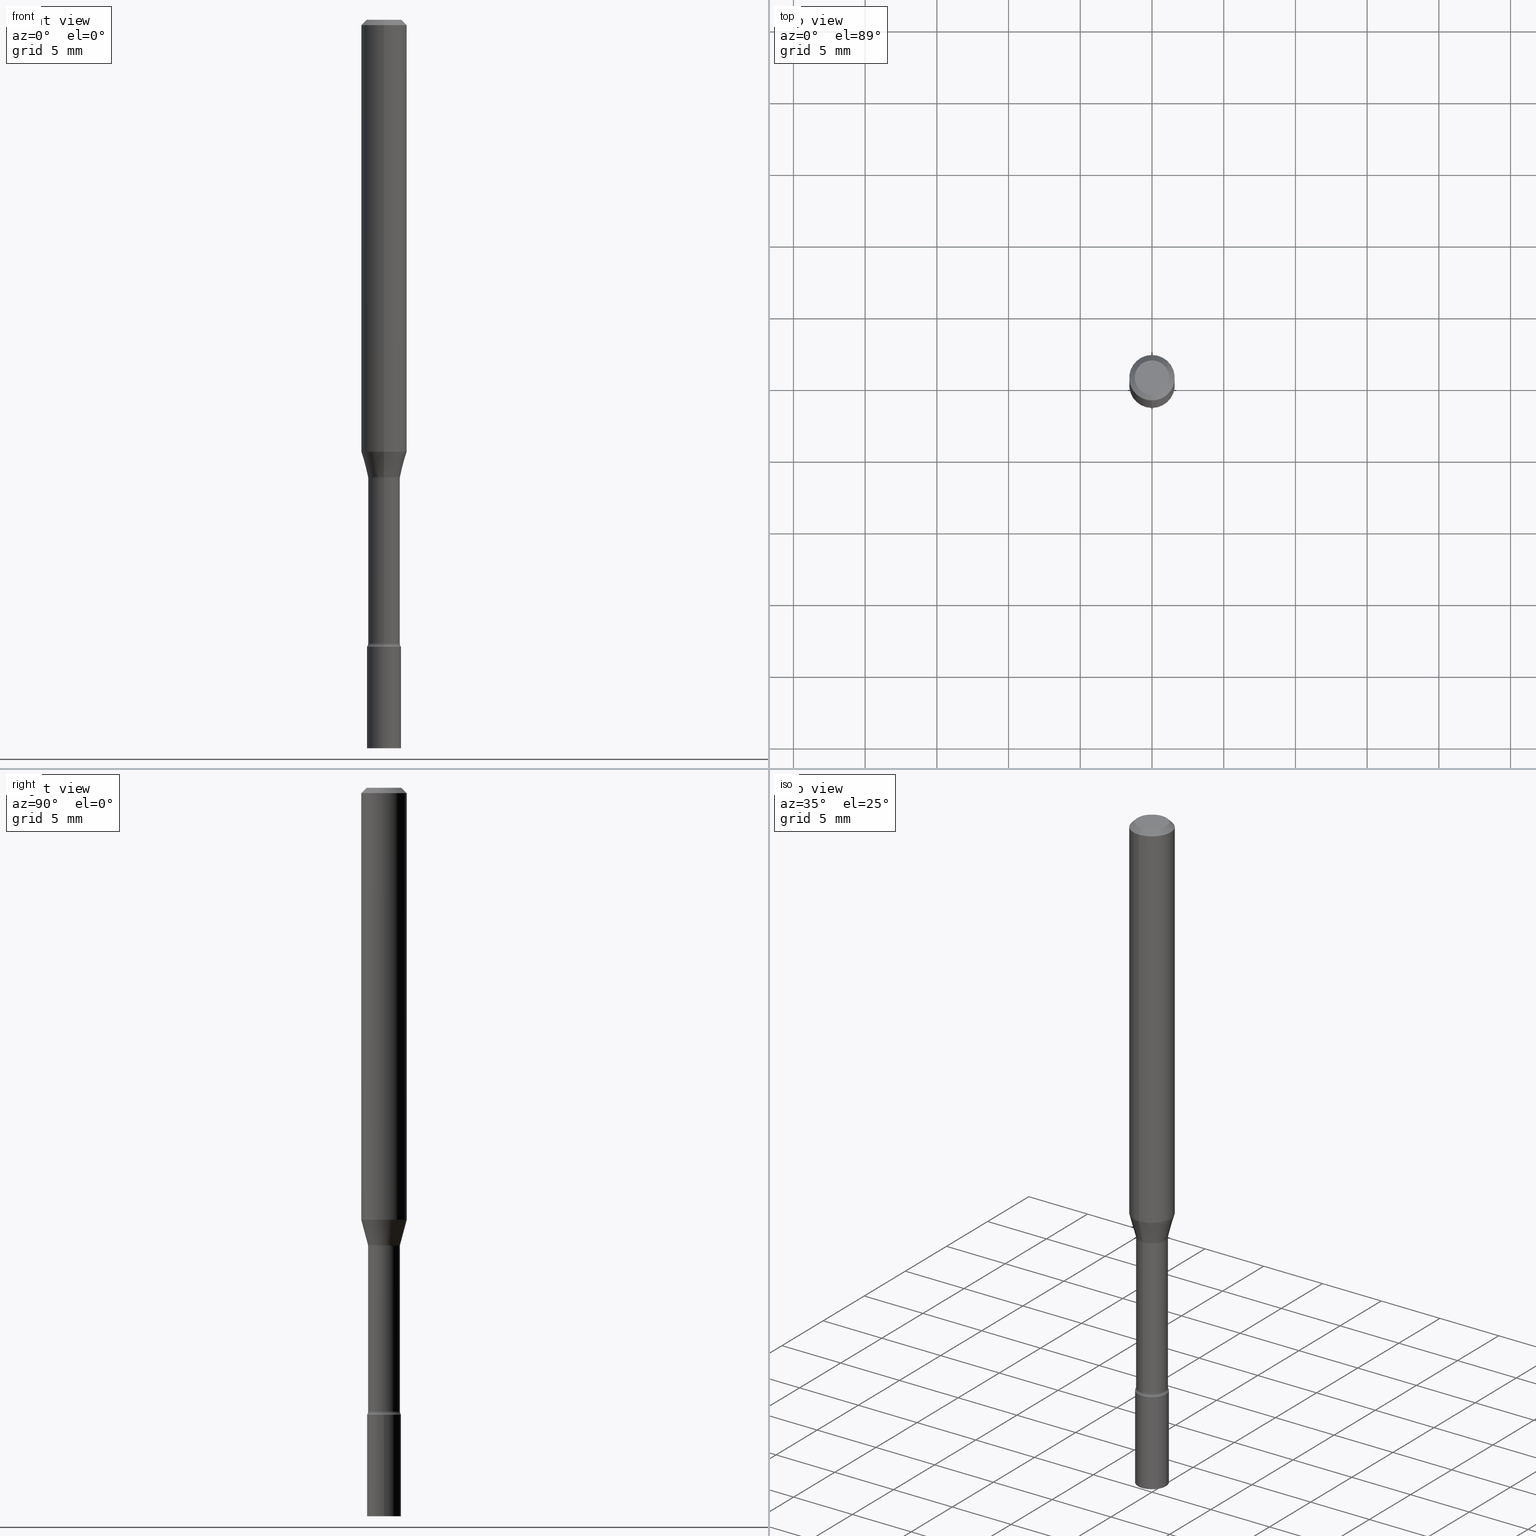
[diagram: canonical four-view strip — front | top / right | iso, engineering-drawing reading convention]
A machine part, canonical four-view strip (front | top / right | iso — engineering-drawing reading convention). The complete STEP part file that produces these views, byte-faithful:
ISO-10303-21;
HEADER;
FILE_DESCRIPTION (( 'STEP AP203' ),
    '1' );
FILE_NAME ('01332.STEP',
    '2024-03-08T21:14:33',
    ( '' ),
    ( '' ),
    'SwSTEP 2.0',
    'SolidWorks 2023',
    '' );
FILE_SCHEMA (( 'CONFIG_CONTROL_DESIGN' ));
ENDSEC;

DATA;
#1 = ORIENTED_EDGE ( 'NONE', *, *, #33, .F. ) ;
#2 = CARTESIAN_POINT ( 'NONE',  ( 4.364351673553919652E-16, 0.06249999999999995143, -0.01500000000000024751 ) ) ;
#3 = DIRECTION ( 'NONE',  ( -6.982962677686265133E-15, -1.000000000000000000, 6.251368406554375417E-15 ) ) ;
#4 = SECURITY_CLASSIFICATION ( '', '', #91 ) ;
#5 = DIRECTION ( 'NONE',  ( -2.445480588895451802E-29, 3.491464465331343396E-15, 1.000000000000000000 ) ) ;
#6 = EDGE_CURVE ( 'NONE', #343, #289, #273, .T. ) ;
#7 = AXIS2_PLACEMENT_3D ( 'NONE', #223, #299, #431 ) ;
#8 = SHAPE_DEFINITION_REPRESENTATION ( #291, #351 ) ;
#9 = DIRECTION ( 'NONE',  ( -2.445480588895451802E-29, 3.491464465331343790E-15, 1.000000000000000000 ) ) ;
#10 = AXIS2_PLACEMENT_3D ( 'NONE', #402, #484, #39 ) ;
#11 = PERSON_AND_ORGANIZATION_ROLE ( 'design_supplier' ) ;
#12 = DATE_AND_TIME ( #421, #488 ) ;
#13 = EDGE_LOOP ( 'NONE', ( #422, #156, #425, #83 ) ) ;
#14 = DIRECTION ( 'NONE',  ( -2.445480588895451802E-29, 3.491464465331343790E-15, 1.000000000000000000 ) ) ;
#15 = CALENDAR_DATE ( 2024, 8, 3 ) ;
#16 = EDGE_LOOP ( 'NONE', ( #148, #49, #211, #25 ) ) ;
#17 = EDGE_CURVE ( 'NONE', #213, #247, #86, .T. ) ;
#18 = AXIS2_PLACEMENT_3D ( 'NONE', #358, #303, #265 ) ;
#19 = ORIENTED_EDGE ( 'NONE', *, *, #163, .T. ) ;
#20 = CARTESIAN_POINT ( 'NONE',  ( 4.187330458508121019E-29, -5.978340440266618372E-15, -1.712273030308291366 ) ) ;
#21 = ORIENTED_EDGE ( 'NONE', *, *, #419, .F. ) ;
#22 = LINE ( 'NONE', #183, #116 ) ;
#23 = EDGE_CURVE ( 'NONE', #161, #67, #508, .T. ) ;
#24 = CYLINDRICAL_SURFACE ( 'NONE', #420, 0.04649999999999999967 ) ;
#25 = ORIENTED_EDGE ( 'NONE', *, *, #455, .F. ) ;
#26 = ORIENTED_EDGE ( 'NONE', *, *, #271, .F. ) ;
#27 = FACE_OUTER_BOUND ( 'NONE', #138, .T. ) ;
#28 = AXIS2_PLACEMENT_3D ( 'NONE', #297, #225, #160 ) ;
#29 = FACE_OUTER_BOUND ( 'NONE', #234, .T. ) ;
#30 = CONICAL_SURFACE ( 'NONE', #224, 0.06250000000000000000, 0.7853981633974483900 ) ;
#31 = CC_DESIGN_PERSON_AND_ORGANIZATION_ASSIGNMENT ( #519, #96, ( #457 ) ) ;
#32 = FACE_OUTER_BOUND ( 'NONE', #295, .T. ) ;
#33 = EDGE_CURVE ( 'NONE', #343, #396, #202, .T. ) ;
#34 = DIRECTION ( 'NONE',  ( -2.445480588895451802E-29, 3.491464465331343790E-15, 1.000000000000000000 ) ) ;
#35 = AXIS2_PLACEMENT_3D ( 'NONE', #178, #296, #465 ) ;
#36 = EDGE_CURVE ( 'NONE', #191, #417, #405, .T. ) ;
#37 = CIRCLE ( 'NONE', #328, 0.06250000000000000000 ) ;
#38 = FACE_OUTER_BOUND ( 'NONE', #390, .T. ) ;
#39 = DIRECTION ( 'NONE',  ( -1.000000000000000000, 6.982962677686265922E-15, -4.876176775795935793E-29 ) ) ;
#40 = DIRECTION ( 'NONE',  ( -6.982962677686264344E-15, -1.000000000000000000, 6.251368406554373050E-15 ) ) ;
#41 = ADVANCED_FACE ( 'NONE', ( #229 ), #312, .T. ) ;
#42 = APPLICATION_CONTEXT ( 'configuration controlled 3d designs of mechanical parts and assemblies' ) ;
#43 = CARTESIAN_POINT ( 'NONE',  ( 4.187330458508121019E-29, -5.978340440266618372E-15, -1.712273030308291366 ) ) ;
#44 = VECTOR ( 'NONE', #314, 39.37007874015748143 ) ;
#45 = CLOSED_SHELL ( 'NONE', ( #87, #294, #94, #518 ) ) ;
#46 = LENGTH_MEASURE_WITH_UNIT ( LENGTH_MEASURE( 0.02539999999999999897 ), #408 );
#47 = CIRCLE ( 'NONE', #458, 0.04370000000000001661 ) ;
#48 = PRODUCT_DEFINITION ( 'UNKNOWN', '', #515, #453 ) ;
#49 = ORIENTED_EDGE ( 'NONE', *, *, #154, .T. ) ;
#50 = DIRECTION ( 'NONE',  ( -6.982962677686266711E-15, -1.000000000000000000, 3.491464465331344185E-15 ) ) ;
#51 = LINE ( 'NONE', #334, #215 ) ;
#52 = DATE_AND_TIME ( #15, #309 ) ;
#53 = CIRCLE ( 'NONE', #107, 0.04649999999999999967 ) ;
#54 = COORDINATED_UNIVERSAL_TIME_OFFSET ( 5, 0, .BEHIND. ) ;
#55 = CARTESIAN_POINT ( 'NONE',  ( 4.440892098500625669E-16, 0.06250000000000000000, -2.182165290832089869E-16 ) ) ;
#56 = APPROVAL_ROLE ( '' ) ;
#57 = DIRECTION ( 'NONE',  ( 1.000000000000000000, -6.982962677686260400E-15, 0.000000000000000000 ) ) ;
#58 = EDGE_CURVE ( 'NONE', #289, #247, #476, .T. ) ;
#59 = PERSON_AND_ORGANIZATION ( #192, #182 ) ;
#60 = EDGE_LOOP ( 'NONE', ( #255, #341, #19, #98 ) ) ;
#61 = APPROVAL_PERSON_ORGANIZATION ( #167, #79, #333 ) ;
#62 = VERTEX_POINT ( 'NONE', #394 ) ;
#63 = CARTESIAN_POINT ( 'NONE',  ( 3.076352924062631068E-29, -4.392174268712645815E-15, -1.257974787463810973 ) ) ;
#64 = AXIS2_PLACEMENT_3D ( 'NONE', #324, #274, #268 ) ;
#65 = CARTESIAN_POINT ( 'NONE',  ( -3.087245492643057408E-16, -0.04421111260566836648, -1.254092501787272829 ) ) ;
#66 = APPLICATION_CONTEXT ( 'configuration controlled 3d designs of mechanical parts and assemblies' ) ;
#67 = VERTEX_POINT ( 'NONE', #194 ) ;
#68 = CARTESIAN_POINT ( 'NONE',  ( 3.840629472727447874E-16, 0.04749999999999999362, -1.947592745229183872E-16 ) ) ;
#69 = CARTESIAN_POINT ( 'NONE',  ( 3.066858869800110826E-29, -4.378619406228748926E-15, -1.254092501787273051 ) ) ;
#70 = CARTESIAN_POINT ( 'NONE',  ( 4.208651815444620572E-29, -6.008839384149054309E-15, -1.721000000000000085 ) ) ;
#71 = DIRECTION ( 'NONE',  ( -2.445480588895451802E-29, 3.491464465331343790E-15, 1.000000000000000000 ) ) ;
#72 = AXIS2_PLACEMENT_3D ( 'NONE', #20, #256, #106 ) ;
#73 = DIRECTION ( 'NONE',  ( -6.982962677686265922E-15, -1.000000000000000000, 3.491464465331343790E-15 ) ) ;
#74 = EDGE_CURVE ( 'NONE', #289, #62, #479, .T. ) ;
#75 = DIRECTION ( 'NONE',  ( -6.982962677686266711E-15, -1.000000000000000000, 6.179098042681422745E-15 ) ) ;
#76 = DIRECTION ( 'NONE',  ( -2.445480588895451802E-29, 3.491464465331343396E-15, 1.000000000000000000 ) ) ;
#77 = ORIENTED_EDGE ( 'NONE', *, *, #366, .T. ) ;
#78 = FACE_OUTER_BOUND ( 'NONE', #171, .T. ) ;
#79 = APPROVAL ( #165, 'UNSPECIFIED' ) ;
#80 = LINE ( 'NONE', #2, #44 ) ;
#81 = ADVANCED_FACE ( 'NONE', ( #214 ), #184, .F. ) ;
#82 = DIRECTION ( 'NONE',  ( -6.982962677686265922E-15, -1.000000000000000000, 3.491464465331343790E-15 ) ) ;
#83 = ORIENTED_EDGE ( 'NONE', *, *, #361, .T. ) ;
#84 = ORIENTED_EDGE ( 'NONE', *, *, #369, .T. ) ;
#85 = CARTESIAN_POINT ( 'NONE',  ( 3.066858869800110826E-29, -4.378619406228748926E-15, -1.254092501787273051 ) ) ;
#86 = CIRCLE ( 'NONE', #494, 0.04370000000000001661 ) ;
#87 = ADVANCED_FACE ( 'NONE', ( #381 ), #24, .T. ) ;
#88 = ORIENTED_EDGE ( 'NONE', *, *, #163, .F. ) ;
#89 = DATE_TIME_ROLE ( 'classification_date' ) ;
#90 = DIRECTION ( 'NONE',  ( -2.445480588895451802E-29, 3.491464465331343396E-15, 1.000000000000000000 ) ) ;
#91 = SECURITY_CLASSIFICATION_LEVEL ( 'unclassified' ) ;
#92 = AXIS2_PLACEMENT_3D ( 'NONE', #212, #497, #427 ) ;
#93 = CIRCLE ( 'NONE', #411, 0.06250000000000000000 ) ;
#94 = ADVANCED_FACE ( 'NONE', ( #149 ), #304, .T. ) ;
#95 = DIRECTION ( 'NONE',  ( -2.445480588895451802E-29, 3.491464465331343396E-15, 1.000000000000000000 ) ) ;
#96 = PERSON_AND_ORGANIZATION_ROLE ( 'design_owner' ) ;
#97 = ORIENTED_EDGE ( 'NONE', *, *, #128, .F. ) ;
#98 = ORIENTED_EDGE ( 'NONE', *, *, #235, .F. ) ;
#99 = CARTESIAN_POINT ( 'NONE',  ( 3.791140294341928442E-16, 0.04421111260565960960, -1.254092501787273273 ) ) ;
#100 =( GEOMETRIC_REPRESENTATION_CONTEXT ( 3 ) GLOBAL_UNCERTAINTY_ASSIGNED_CONTEXT ( ( #329 ) ) GLOBAL_UNIT_ASSIGNED_CONTEXT ( ( #204, #123, #317 ) ) REPRESENTATION_CONTEXT ( 'NONE', 'WORKASPACE' ) );
#101 = DIRECTION ( 'NONE',  ( -2.445468806185136597E-29, 3.491481338843145583E-15, 1.000000000000000000 ) ) ;
#102 = CARTESIAN_POINT ( 'NONE',  ( -3.051554690148591516E-16, -0.04370000000000440893, -1.257974787463810751 ) ) ;
#103 = VERTEX_POINT ( 'NONE', #283 ) ;
#104 = DIRECTION ( 'NONE',  ( -6.982962677686265922E-15, -1.000000000000000000, 3.491464465331343790E-15 ) ) ;
#105 = DIRECTION ( 'NONE',  ( 1.000000000000000000, -6.982962677686267499E-15, 4.876176775795936353E-29 ) ) ;
#106 = DIRECTION ( 'NONE',  ( -6.982962677686264344E-15, -1.000000000000000000, 6.251368406554373050E-15 ) ) ;
#107 = AXIS2_PLACEMENT_3D ( 'NONE', #159, #398, #111 ) ;
#108 = CARTESIAN_POINT ( 'NONE',  ( -4.364351673553912750E-16, -0.06250000000000005551, -0.01499999999999981209 ) ) ;
#109 = EDGE_CURVE ( 'NONE', #177, #325, #323, .T. ) ;
#110 = AXIS2_PLACEMENT_3D ( 'NONE', #262, #388, #379 ) ;
#111 = DIRECTION ( 'NONE',  ( -6.982962677686266711E-15, -1.000000000000000000, 5.874941921858630857E-15 ) ) ;
#112 = APPLICATION_PROTOCOL_DEFINITION ( 'international standard', 'config_control_design', 1994, #42 ) ;
#113 = LOCAL_TIME ( 16, 14, 33.00000000000000000, #241 ) ;
#114 = DIRECTION ( 'NONE',  ( -6.982962677686267499E-15, -1.000000000000000000, 0.000000000000000000 ) ) ;
#115 = CARTESIAN_POINT ( 'NONE',  ( -4.098999091801423646E-16, -0.05870000000000603901, -1.712273030308291144 ) ) ;
#116 = VECTOR ( 'NONE', #147, 39.37007874015748143 ) ;
#117 = FACE_OUTER_BOUND ( 'NONE', #135, .T. ) ;
#118 = DIRECTION ( 'NONE',  ( -6.982962677686263555E-15, -1.000000000000000000, 0.000000000000000000 ) ) ;
#119 = ORIENTED_EDGE ( 'NONE', *, *, #413, .F. ) ;
#120 = APPROVAL ( #132, 'UNSPECIFIED' ) ;
#121 = DIRECTION ( 'NONE',  ( -2.445480588895451802E-29, 3.491464465331343790E-15, 1.000000000000000000 ) ) ;
#122 = ORIENTED_EDGE ( 'NONE', *, *, #23, .F. ) ;
#123 =( NAMED_UNIT ( * ) PLANE_ANGLE_UNIT ( ) SI_UNIT ( $, .RADIAN. ) );
#124 = CARTESIAN_POINT ( 'NONE',  ( 4.890937612370273194E-29, -6.982962677686291165E-15, -2.000000000000000000 ) ) ;
#125 = ORIENTED_EDGE ( 'NONE', *, *, #109, .F. ) ;
#126 = DATE_AND_TIME ( #286, #356 ) ;
#127 = CC_DESIGN_APPROVAL ( #264, ( #4 ) ) ;
#128 = EDGE_CURVE ( 'NONE', #177, #191, #208, .T. ) ;
#129 = AXIS2_PLACEMENT_3D ( 'NONE', #432, #429, #220 ) ;
#130 = APPROVAL_STATUS ( 'not_yet_approved' ) ;
#131 = DIRECTION ( 'NONE',  ( -4.851104656540964275E-15, -0.7071067811865500152, -0.7071067811865450192 ) ) ;
#132 = APPROVAL_STATUS ( 'not_yet_approved' ) ;
#133 = PERSON_AND_ORGANIZATION ( #192, #182 ) ;
#134 = EDGE_CURVE ( 'NONE', #417, #325, #368, .T. ) ;
#135 = EDGE_LOOP ( 'NONE', ( #463, #122 ) ) ;
#136 = COORDINATED_UNIVERSAL_TIME_OFFSET ( 5, 0, .BEHIND. ) ;
#137 = AXIS2_PLACEMENT_3D ( 'NONE', #124, #487, #233 ) ;
#138 = EDGE_LOOP ( 'NONE', ( #512, #403, #231, #217 ) ) ;
#139 = VECTOR ( 'NONE', #469, 39.37007874015748143 ) ;
#140 = ORIENTED_EDGE ( 'NONE', *, *, #6, .T. ) ;
#141 = ORIENTED_EDGE ( 'NONE', *, *, #58, .F. ) ;
#142 = FACE_OUTER_BOUND ( 'NONE', #406, .T. ) ;
#143 = ORIENTED_EDGE ( 'NONE', *, *, #459, .T. ) ;
#144 = FACE_OUTER_BOUND ( 'NONE', #277, .T. ) ;
#145 = CARTESIAN_POINT ( 'NONE',  ( -0.04649999999999999967, -6.165498658789225463E-15, -2.000000000000000000 ) ) ;
#146 = DIRECTION ( 'NONE',  ( -6.982962677686265922E-15, -1.000000000000000000, 3.483106191921935554E-15 ) ) ;
#147 = DIRECTION ( 'NONE',  ( -2.445468806185136877E-29, 3.491481338843145188E-15, 1.000000000000000000 ) ) ;
#148 = ORIENTED_EDGE ( 'NONE', *, *, #222, .F. ) ;
#149 = FACE_OUTER_BOUND ( 'NONE', #60, .T. ) ;
#150 = DIRECTION ( 'NONE',  ( -6.982962677686266711E-15, -1.000000000000000000, 5.874941921858630857E-15 ) ) ;
#151 = ORIENTED_EDGE ( 'NONE', *, *, #166, .F. ) ;
#152 = ORIENTED_EDGE ( 'NONE', *, *, #493, .T. ) ;
#153 = PLANE ( 'NONE',  #7 ) ;
#154 = EDGE_CURVE ( 'NONE', #446, #417, #51, .T. ) ;
#155 = MANIFOLD_SOLID_BREP ( 'Body-Move/Copy2[2]', #195 ) ;
#156 = ORIENTED_EDGE ( 'NONE', *, *, #260, .F. ) ;
#157 = CIRCLE ( 'NONE', #346, 0.04649999999999999967 ) ;
#158 = EDGE_CURVE ( 'NONE', #343, #213, #290, .T. ) ;
#159 = CARTESIAN_POINT ( 'NONE',  ( 4.208672093489073198E-29, -6.008810344835243096E-15, -1.721000000000000085 ) ) ;
#160 = DIRECTION ( 'NONE',  ( 1.000000000000000000, -6.982962677686267499E-15, 4.876176775795936353E-29 ) ) ;
#161 = VERTEX_POINT ( 'NONE', #145 ) ;
#162 = TOROIDAL_SURFACE ( 'NONE', #321, 0.05870000000000000911, 0.01500000000000003240 ) ;
#163 = EDGE_CURVE ( 'NONE', #67, #506, #22, .T. ) ;
#164 = CIRCLE ( 'NONE', #471, 0.04749999999999999362 ) ;
#165 = APPROVAL_STATUS ( 'not_yet_approved' ) ;
#166 = EDGE_CURVE ( 'NONE', #377, #177, #261, .T. ) ;
#167 = PERSON_AND_ORGANIZATION ( #192, #182 ) ;
#168 = DIRECTION ( 'NONE',  ( -2.445480588895451802E-29, 3.491464465331343790E-15, 1.000000000000000000 ) ) ;
#169 = ORIENTED_EDGE ( 'NONE', *, *, #389, .F. ) ;
#170 = CC_DESIGN_APPROVAL ( #79, ( #515 ) ) ;
#171 = EDGE_LOOP ( 'NONE', ( #151, #180, #196, #97 ) ) ;
#172 = VECTOR ( 'NONE', #76, 39.37007874015748143 ) ;
#173 = ORIENTED_EDGE ( 'NONE', *, *, #17, .T. ) ;
#174 = ORIENTED_EDGE ( 'NONE', *, *, #188, .F. ) ;
#175 = AXIS2_PLACEMENT_3D ( 'NONE', #302, #34, #150 ) ;
#176 = CARTESIAN_POINT ( 'NONE',  ( -4.364351673553623829E-16, -0.06250000000000410783, -1.185837444817704922 ) ) ;
#177 = VERTEX_POINT ( 'NONE', #466 ) ;
#178 = CARTESIAN_POINT ( 'NONE',  ( 3.066858869800110826E-29, -4.378619406228748926E-15, -1.254092501787273051 ) ) ;
#179 = ADVANCED_FACE ( 'NONE', ( #29 ), #320, .F. ) ;
#180 = ORIENTED_EDGE ( 'NONE', *, *, #413, .T. ) ;
#181 = DIRECTION ( 'NONE',  ( -2.445480588895451802E-29, 3.491464465331343790E-15, 1.000000000000000000 ) ) ;
#182 = ORGANIZATION ( 'UNSPECIFIED', 'UNSPECIFIED', '' ) ;
#183 = CARTESIAN_POINT ( 'NONE',  ( 0.04649999999999999967, -3.247077645124114474E-16, 2.267422200745110326E-30 ) ) ;
#184 = PLANE ( 'NONE',  #129 ) ;
#185 = CARTESIAN_POINT ( 'NONE',  ( 3.076338101710126374E-29, -4.392195495165068238E-15, -1.257974787463810973 ) ) ;
#186 = CARTESIAN_POINT ( 'NONE',  ( 0.000000000000000000, 0.000000000000000000, 0.000000000000000000 ) ) ;
#187 = AXIS2_PLACEMENT_3D ( 'NONE', #350, #308, #513 ) ;
#188 = EDGE_CURVE ( 'NONE', #103, #191, #372, .T. ) ;
#189 = FACE_OUTER_BOUND ( 'NONE', #397, .T. ) ;
#190 = CC_DESIGN_PERSON_AND_ORGANIZATION_ASSIGNMENT ( #133, #370, ( #48 ) ) ;
#191 = VERTEX_POINT ( 'NONE', #176 ) ;
#192 = PERSON ( 'UNSPECIFIED', 'UNSPECIFIED', 'UNSPECIFIED', ('UNSPECIFIED'), ('UNSPECIFIED'), ('UNSPECIFIED') ) ;
#193 = CARTESIAN_POINT ( 'NONE',  ( 4.170885858912095901E-16, 0.05869999999999562373, -1.257974787463811195 ) ) ;
#194 = CARTESIAN_POINT ( 'NONE',  ( 0.04649999999999999967, -7.307670442198702662E-15, -2.000000000000000000 ) ) ;
#195 = CLOSED_SHELL ( 'NONE', ( #375, #205, #467, #503, #338, #435, #475, #41, #313, #81, #449, #179, #216, #355 ) ) ;
#196 = ORIENTED_EDGE ( 'NONE', *, *, #188, .T. ) ;
#197 = CYLINDRICAL_SURFACE ( 'NONE', #399, 0.04370000000000002355 ) ;
#198 = CARTESIAN_POINT ( 'NONE',  ( 3.076352924062631068E-29, -4.392174268712645815E-15, -1.257974787463810973 ) ) ;
#199 = AXIS2_PLACEMENT_3D ( 'NONE', #85, #232, #75 ) ;
#200 = PLANE ( 'NONE',  #253 ) ;
#201 = CARTESIAN_POINT ( 'NONE',  ( -4.364351673553916201E-16, -0.06250000000000000000, 2.182165290832089869E-16 ) ) ;
#202 = CIRCLE ( 'NONE', #500, 0.01500000000000002720 ) ;
#203 = AXIS2_PLACEMENT_3D ( 'NONE', #185, #437, #104 ) ;
#204 =( CONVERSION_BASED_UNIT ( 'INCH', #46 ) LENGTH_UNIT ( ) NAMED_UNIT ( #315 ) );
#205 = ADVANCED_FACE ( 'NONE', ( #38 ), #197, .T. ) ;
#206 = APPROVAL_ROLE ( '' ) ;
#207 = AXIS2_PLACEMENT_3D ( 'NONE', #193, #363, #486 ) ;
#208 = CIRCLE ( 'NONE', #376, 0.06250000000000000000 ) ;
#209 = ORIENTED_EDGE ( 'NONE', *, *, #318, .T. ) ;
#210 = ORIENTED_EDGE ( 'NONE', *, *, #74, .F. ) ;
#211 = ORIENTED_EDGE ( 'NONE', *, *, #134, .T. ) ;
#212 = CARTESIAN_POINT ( 'NONE',  ( 4.187310283291024254E-29, -5.978369332325803613E-15, -1.712273030308291366 ) ) ;
#213 = VERTEX_POINT ( 'NONE', #102 ) ;
#214 = FACE_OUTER_BOUND ( 'NONE', #386, .T. ) ;
#215 = VECTOR ( 'NONE', #131, 39.37007874015748143 ) ;
#216 = ADVANCED_FACE ( 'NONE', ( #380 ), #514, .T. ) ;
#217 = ORIENTED_EDGE ( 'NONE', *, *, #36, .F. ) ;
#218 = CARTESIAN_POINT ( 'NONE',  ( -3.051554690148482062E-16, -0.04370000000000601181, -1.712273030308291144 ) ) ;
#219 = DIRECTION ( 'NONE',  ( -2.445480588895451802E-29, 3.491464465331343790E-15, 1.000000000000000000 ) ) ;
#220 = DIRECTION ( 'NONE',  ( 6.982962677686265922E-15, 1.000000000000000000, -3.491464465331343396E-15 ) ) ;
#221 = DIRECTION ( 'NONE',  ( 1.000000000000000000, -6.982962677686260400E-15, 0.000000000000000000 ) ) ;
#222 = EDGE_CURVE ( 'NONE', #446, #382, #456, .T. ) ;
#223 = CARTESIAN_POINT ( 'NONE',  ( 4.208651815444620572E-29, -6.008839384149054309E-15, -1.721000000000000085 ) ) ;
#224 = AXIS2_PLACEMENT_3D ( 'NONE', #226, #511, #252 ) ;
#225 = DIRECTION ( 'NONE',  ( -2.445468806185136597E-29, 3.491481338843145583E-15, 1.000000000000000000 ) ) ;
#226 = CARTESIAN_POINT ( 'NONE',  ( 3.668220883343184955E-31, -5.237196697997026754E-17, -0.01500000000000003067 ) ) ;
#227 = LOCAL_TIME ( 16, 14, 33.00000000000000000, #54 ) ;
#228 = DIRECTION ( 'NONE',  ( -1.000000000000000000, 6.982962677686265922E-15, -4.883557194083112340E-29 ) ) ;
#229 = FACE_OUTER_BOUND ( 'NONE', #339, .T. ) ;
#230 = DIRECTION ( 'NONE',  ( 2.445480588895451802E-29, -3.491464465331343790E-15, -1.000000000000000000 ) ) ;
#231 = ORIENTED_EDGE ( 'NONE', *, *, #134, .F. ) ;
#232 = DIRECTION ( 'NONE',  ( -2.445480588895451802E-29, 3.491464465331343790E-15, 1.000000000000000000 ) ) ;
#233 = DIRECTION ( 'NONE',  ( 1.000000000000000000, -6.982962677686260400E-15, 0.000000000000000000 ) ) ;
#234 = EDGE_LOOP ( 'NONE', ( #210, #481, #349, #77 ) ) ;
#235 = EDGE_CURVE ( 'NONE', #504, #506, #428, .T. ) ;
#236 = AXIS2_PLACEMENT_3D ( 'NONE', #237, #230, #393 ) ;
#237 = CARTESIAN_POINT ( 'NONE',  ( 3.668220883343184955E-31, -5.237196697997026754E-17, -0.01500000000000003067 ) ) ;
#238 = AXIS2_PLACEMENT_3D ( 'NONE', #43, #362, #40 ) ;
#239 = CC_DESIGN_PERSON_AND_ORGANIZATION_ASSIGNMENT ( #450, #11, ( #515 ) ) ;
#240 = DIRECTION ( 'NONE',  ( -6.982962677686265922E-15, -1.000000000000000000, 4.370956789862821150E-15 ) ) ;
#241 = COORDINATED_UNIVERSAL_TIME_OFFSET ( 5, 0, .BEHIND. ) ;
#242 = DIRECTION ( 'NONE',  ( -2.445480588895451802E-29, 3.491464465331343790E-15, 1.000000000000000000 ) ) ;
#243 = DATE_AND_TIME ( #293, #227 ) ;
#244 = APPROVAL_PERSON_ORGANIZATION ( #367, #120, #206 ) ;
#245 = AXIS2_PLACEMENT_3D ( 'NONE', #452, #168, #285 ) ;
#246 = AXIS2_PLACEMENT_3D ( 'NONE', #305, #101, #507 ) ;
#247 = VERTEX_POINT ( 'NONE', #336 ) ;
#248 = APPROVAL_DATE_TIME ( #284, #79 ) ;
#249 = ORIENTED_EDGE ( 'NONE', *, *, #58, .T. ) ;
#250 = CARTESIAN_POINT ( 'NONE',  ( 3.141388490182940323E-16, 0.04421111260565960960, -1.254092501787273273 ) ) ;
#251 = EDGE_CURVE ( 'NONE', #191, #177, #37, .T. ) ;
#252 = DIRECTION ( 'NONE',  ( 6.982962677686265922E-15, 1.000000000000000000, -3.483106191921935554E-15 ) ) ;
#253 = AXIS2_PLACEMENT_3D ( 'NONE', #279, #5, #447 ) ;
#254 = AXIS2_PLACEMENT_3D ( 'NONE', #70, #482, #57 ) ;
#255 = ORIENTED_EDGE ( 'NONE', *, *, #369, .F. ) ;
#256 = DIRECTION ( 'NONE',  ( -2.445480588895451802E-29, 3.491464465331343790E-15, 1.000000000000000000 ) ) ;
#257 = CC_DESIGN_DATE_AND_TIME_ASSIGNMENT ( #126, #89, ( #4 ) ) ;
#258 = ORIENTED_EDGE ( 'NONE', *, *, #278, .T. ) ;
#259 = CARTESIAN_POINT ( 'NONE',  ( 3.076338101710126374E-29, -4.392195495165068238E-15, -1.257974787463810973 ) ) ;
#260 = EDGE_CURVE ( 'NONE', #382, #446, #164, .T. ) ;
#261 = LINE ( 'NONE', #250, #282 ) ;
#262 = CARTESIAN_POINT ( 'NONE',  ( 0.000000000000000000, 0.000000000000000000, 0.000000000000000000 ) ) ;
#263 = CONICAL_SURFACE ( 'NONE', #35, 0.04421111260566398804, 0.2617993877991500740 ) ;
#264 = APPROVAL ( #130, 'UNSPECIFIED' ) ;
#265 = DIRECTION ( 'NONE',  ( 7.105427357600997914E-15, 1.000000000000000000, 0.000000000000000000 ) ) ;
#266 = CARTESIAN_POINT ( 'NONE',  ( 4.208651815444620572E-29, -6.008839384149054309E-15, -1.721000000000000085 ) ) ;
#267 = AXIS2_PLACEMENT_3D ( 'NONE', #186, #306, #400 ) ;
#268 = DIRECTION ( 'NONE',  ( -6.982962677686265133E-15, -1.000000000000000000, 3.491464465331344185E-15 ) ) ;
#269 = FACE_OUTER_BOUND ( 'NONE', #16, .T. ) ;
#270 = ORIENTED_EDGE ( 'NONE', *, *, #158, .F. ) ;
#271 = EDGE_CURVE ( 'NONE', #247, #213, #47, .T. ) ;
#272 = FACE_OUTER_BOUND ( 'NONE', #360, .T. ) ;
#273 = CIRCLE ( 'NONE', #238, 0.04370000000000003743 ) ;
#274 = DIRECTION ( 'NONE',  ( -2.445480588895451802E-29, 3.491464465331343790E-15, 1.000000000000000000 ) ) ;
#275 = ORIENTED_EDGE ( 'NONE', *, *, #510, .F. ) ;
#276 = ORIENTED_EDGE ( 'NONE', *, *, #74, .T. ) ;
#277 = EDGE_LOOP ( 'NONE', ( #499, #275 ) ) ;
#278 = EDGE_CURVE ( 'NONE', #67, #161, #340, .T. ) ;
#279 = CARTESIAN_POINT ( 'NONE',  ( 3.247077645124535035E-16, 0.04649999999999399058, -1.721000000000000307 ) ) ;
#280 = PRODUCT_RELATED_PRODUCT_CATEGORY ( 'detail', '', ( #457 ) ) ;
#281 = CC_DESIGN_APPROVAL ( #120, ( #48 ) ) ;
#282 = VECTOR ( 'NONE', #384, 39.37007874015748854 ) ;
#283 = CARTESIAN_POINT ( 'NONE',  ( -3.087245492643057408E-16, -0.04421111260566836648, -1.254092501787272829 ) ) ;
#284 = DATE_AND_TIME ( #412, #113 ) ;
#285 = DIRECTION ( 'NONE',  ( -6.982962677686265922E-15, -1.000000000000000000, 3.483106191921935554E-15 ) ) ;
#286 = CALENDAR_DATE ( 2024, 8, 3 ) ;
#287 = ORIENTED_EDGE ( 'NONE', *, *, #459, .F. ) ;
#288 = PERSON_AND_ORGANIZATION_ROLE ( 'creator' ) ;
#289 = VERTEX_POINT ( 'NONE', #474 ) ;
#290 = LINE ( 'NONE', #460, #516 ) ;
#291 = PRODUCT_DEFINITION_SHAPE ( 'NONE', 'NONE',  #48 ) ;
#292 = CIRCLE ( 'NONE', #72, 0.04370000000000003743 ) ;
#293 = CALENDAR_DATE ( 2024, 8, 3 ) ;
#294 = ADVANCED_FACE ( 'NONE', ( #383 ), #153, .T. ) ;
#295 = EDGE_LOOP ( 'NONE', ( #287, #169, #152, #173 ) ) ;
#296 = DIRECTION ( 'NONE',  ( -2.445480588895451802E-29, 3.491464465331343790E-15, 1.000000000000000000 ) ) ;
#297 = CARTESIAN_POINT ( 'NONE',  ( 0.000000000000000000, 0.000000000000000000, 0.000000000000000000 ) ) ;
#298 = ORIENTED_EDGE ( 'NONE', *, *, #158, .T. ) ;
#299 = DIRECTION ( 'NONE',  ( -2.438088387897960049E-29, 3.491481338843145188E-15, 1.000000000000000000 ) ) ;
#300 = DIRECTION ( 'NONE',  ( -6.982962677686265922E-15, -1.000000000000000000, 4.370956789862821150E-15 ) ) ;
#301 = ORIENTED_EDGE ( 'NONE', *, *, #251, .F. ) ;
#302 = CARTESIAN_POINT ( 'NONE',  ( 4.208672093489073198E-29, -6.008810344835243096E-15, -1.721000000000000085 ) ) ;
#303 = DIRECTION ( 'NONE',  ( 1.000000000000000000, -7.105427357601001070E-15, 4.926315301901159729E-29 ) ) ;
#304 = CYLINDRICAL_SURFACE ( 'NONE', #28, 0.04649999999999999967 ) ;
#305 = CARTESIAN_POINT ( 'NONE',  ( 4.890937612370273194E-29, -6.982962677686291165E-15, -2.000000000000000000 ) ) ;
#306 = DIRECTION ( 'NONE',  ( -2.445480588895451802E-29, 3.491464465331343790E-15, 1.000000000000000000 ) ) ;
#307 = CC_DESIGN_PERSON_AND_ORGANIZATION_ASSIGNMENT ( #495, #288, ( #515 ) ) ;
#308 = DIRECTION ( 'NONE',  ( -2.445480588895451802E-29, 3.491464465331343790E-15, 1.000000000000000000 ) ) ;
#309 = LOCAL_TIME ( 16, 14, 33.00000000000000000, #136 ) ;
#310 = CARTESIAN_POINT ( 'NONE',  ( 0.000000000000000000, 0.000000000000000000, 0.000000000000000000 ) ) ;
#311 = VECTOR ( 'NONE', #90, 39.37007874015748143 ) ;
#312 = CYLINDRICAL_SURFACE ( 'NONE', #267, 0.06250000000000000000 ) ;
#313 = ADVANCED_FACE ( 'NONE', ( #348 ), #30, .T. ) ;
#314 = DIRECTION ( 'NONE',  ( 4.937700262164548042E-15, 0.7071067811865451302, -0.7071067811865499042 ) ) ;
#315 = DIMENSIONAL_EXPONENTS ( 1.000000000000000000, 0.000000000000000000, 0.000000000000000000, 0.000000000000000000, 0.000000000000000000, 0.000000000000000000, 0.000000000000000000 ) ;
#316 = CARTESIAN_POINT ( 'NONE',  ( -4.098999091801531128E-16, -0.05870000000000440143, -1.257974787463810751 ) ) ;
#317 =( NAMED_UNIT ( * ) SI_UNIT ( $, .STERADIAN. ) SOLID_ANGLE_UNIT ( ) );
#318 = EDGE_CURVE ( 'NONE', #289, #343, #292, .T. ) ;
#319 = DIRECTION ( 'NONE',  ( -1.000000000000000000, 6.982962677686265922E-15, -4.883557194083112340E-29 ) ) ;
#320 = TOROIDAL_SURFACE ( 'NONE', #92, 0.05870000000000006463, 0.01500000000000002373 ) ;
#321 = AXIS2_PLACEMENT_3D ( 'NONE', #259, #434, #73 ) ;
#322 = MANIFOLD_SOLID_BREP ( 'Body-Move/Copy2[1]', #45 ) ;
#323 = LINE ( 'NONE', #55, #311 ) ;
#324 = CARTESIAN_POINT ( 'NONE',  ( 0.000000000000000000, 0.000000000000000000, 0.000000000000000000 ) ) ;
#325 = VERTEX_POINT ( 'NONE', #345 ) ;
#326 = CIRCLE ( 'NONE', #207, 0.01500000000000002720 ) ;
#327 = DATE_TIME_ROLE ( 'creation_date' ) ;
#328 = AXIS2_PLACEMENT_3D ( 'NONE', #451, #121, #300 ) ;
#329 = UNCERTAINTY_MEASURE_WITH_UNIT (LENGTH_MEASURE( 1.000000000000000082E-05 ), #204, 'distance_accuracy_value', 'NONE');
#330 = DIRECTION ( 'NONE',  ( -6.982962677686265133E-15, -1.000000000000000000, 3.491464465331344185E-15 ) ) ;
#331 = COORDINATED_UNIVERSAL_TIME_OFFSET ( 5, 0, .BEHIND. ) ;
#332 = CARTESIAN_POINT ( 'NONE',  ( 2.899942452887079793E-29, -4.140309300240336483E-15, -1.185837444817705144 ) ) ;
#333 = APPROVAL_ROLE ( '' ) ;
#334 = CARTESIAN_POINT ( 'NONE',  ( -4.287811248607203282E-16, -0.06250000000000005551, -0.01499999999999981209 ) ) ;
#335 = ORIENTED_EDGE ( 'NONE', *, *, #128, .T. ) ;
#336 = CARTESIAN_POINT ( 'NONE',  ( 3.105071755272057582E-16, 0.04369999999999563123, -1.257974787463811195 ) ) ;
#337 = AXIS2_PLACEMENT_3D ( 'NONE', #316, #228, #114 ) ;
#338 = ADVANCED_FACE ( 'NONE', ( #27 ), #344, .T. ) ;
#339 = EDGE_LOOP ( 'NONE', ( #125, #335, #491, #472 ) ) ;
#340 = CIRCLE ( 'NONE', #246, 0.04649999999999999967 ) ;
#341 = ORIENTED_EDGE ( 'NONE', *, *, #23, .T. ) ;
#342 = DIRECTION ( 'NONE',  ( -2.445468806185136597E-29, 3.491481338843145583E-15, 1.000000000000000000 ) ) ;
#343 = VERTEX_POINT ( 'NONE', #218 ) ;
#344 = CYLINDRICAL_SURFACE ( 'NONE', #110, 0.06250000000000000000 ) ;
#345 = CARTESIAN_POINT ( 'NONE',  ( 4.440892098500918040E-16, 0.06249999999999995837, -0.01500000000000024751 ) ) ;
#346 = AXIS2_PLACEMENT_3D ( 'NONE', #266, #426, #221 ) ;
#347 = CARTESIAN_POINT ( 'NONE',  ( 7.071036795582065846E-46, -1.009546909385861620E-31, -2.891471241967958777E-17 ) ) ;
#348 = FACE_OUTER_BOUND ( 'NONE', #13, .T. ) ;
#349 = ORIENTED_EDGE ( 'NONE', *, *, #33, .T. ) ;
#350 = CARTESIAN_POINT ( 'NONE',  ( 3.066858869800110826E-29, -4.378619406228748926E-15, -1.254092501787273051 ) ) ;
#351 = ADVANCED_BREP_SHAPE_REPRESENTATION ( '01332', ( #322, #155, #416 ), #100 ) ;
#352 = ORIENTED_EDGE ( 'NONE', *, *, #222, .T. ) ;
#353 = ORIENTED_EDGE ( 'NONE', *, *, #17, .F. ) ;
#354 = DIRECTION ( 'NONE',  ( -6.982962677686266711E-15, -1.000000000000000000, 6.179098042681422745E-15 ) ) ;
#355 = ADVANCED_FACE ( 'NONE', ( #32 ), #162, .F. ) ;
#356 = LOCAL_TIME ( 16, 14, 33.00000000000000000, #423 ) ;
#357 = AXIS2_PLACEMENT_3D ( 'NONE', #438, #483, #470 ) ;
#358 = CARTESIAN_POINT ( 'NONE',  ( 4.170885858912210286E-16, 0.05869999999999409024, -1.712273030308291810 ) ) ;
#359 = EDGE_LOOP ( 'NONE', ( #444, #401 ) ) ;
#360 = EDGE_LOOP ( 'NONE', ( #373, #276, #485, #1 ) ) ;
#361 = EDGE_CURVE ( 'NONE', #325, #417, #93, .T. ) ;
#362 = DIRECTION ( 'NONE',  ( -2.445480588895451802E-29, 3.491464465331343790E-15, 1.000000000000000000 ) ) ;
#363 = DIRECTION ( 'NONE',  ( 1.000000000000000000, -7.105427357601001070E-15, 4.926315301901159729E-29 ) ) ;
#364 = CC_DESIGN_PERSON_AND_ORGANIZATION_ASSIGNMENT ( #454, #414, ( #4 ) ) ;
#365 = APPROVAL_DATE_TIME ( #52, #264 ) ;
#366 = EDGE_CURVE ( 'NONE', #396, #62, #385, .T. ) ;
#367 = PERSON_AND_ORGANIZATION ( #192, #182 ) ;
#368 = CIRCLE ( 'NONE', #245, 0.06250000000000000000 ) ;
#369 = EDGE_CURVE ( 'NONE', #161, #504, #473, .T. ) ;
#370 = PERSON_AND_ORGANIZATION_ROLE ( 'creator' ) ;
#371 = ORIENTED_EDGE ( 'NONE', *, *, #271, .T. ) ;
#372 = LINE ( 'NONE', #65, #418 ) ;
#373 = ORIENTED_EDGE ( 'NONE', *, *, #318, .F. ) ;
#374 = CONICAL_SURFACE ( 'NONE', #199, 0.04421111260566398804, 0.2617993877991500740 ) ;
#375 = ADVANCED_FACE ( 'NONE', ( #189 ), #436, .F. ) ;
#376 = AXIS2_PLACEMENT_3D ( 'NONE', #332, #14, #240 ) ;
#377 = VERTEX_POINT ( 'NONE', #99 ) ;
#378 = CARTESIAN_POINT ( 'NONE',  ( 3.668220883343184955E-31, -5.237196697997026754E-17, -0.01500000000000003067 ) ) ;
#379 = DIRECTION ( 'NONE',  ( -6.982962677686265922E-15, -1.000000000000000000, 3.491464465331343790E-15 ) ) ;
#380 = FACE_OUTER_BOUND ( 'NONE', #387, .T. ) ;
#381 = FACE_OUTER_BOUND ( 'NONE', #415, .T. ) ;
#382 = VERTEX_POINT ( 'NONE', #68 ) ;
#383 = FACE_OUTER_BOUND ( 'NONE', #359, .T. ) ;
#384 = DIRECTION ( 'NONE',  ( 1.839019923739598738E-15, 0.2588190451025247363, 0.9659258262890673130 ) ) ;
#385 = CIRCLE ( 'NONE', #175, 0.04649999999999999967 ) ;
#386 = EDGE_LOOP ( 'NONE', ( #409, #352 ) ) ;
#387 = EDGE_LOOP ( 'NONE', ( #141, #209, #298, #26 ) ) ;
#388 = DIRECTION ( 'NONE',  ( -2.445480588895451802E-29, 3.491464465331343790E-15, 1.000000000000000000 ) ) ;
#389 = EDGE_CURVE ( 'NONE', #103, #377, #501, .T. ) ;
#390 = EDGE_LOOP ( 'NONE', ( #140, #249, #353, #270 ) ) ;
#391 = DIRECTION ( 'NONE',  ( -6.982962677686265133E-15, -1.000000000000000000, 6.251368406554375417E-15 ) ) ;
#392 = CARTESIAN_POINT ( 'NONE',  ( 3.105071755271638992E-16, 0.04370000000000002355, -1.525769971349798148E-16 ) ) ;
#393 = DIRECTION ( 'NONE',  ( 6.982962677686265922E-15, 1.000000000000000000, -3.483106191921935554E-15 ) ) ;
#394 = CARTESIAN_POINT ( 'NONE',  ( 3.304023721284886895E-16, 0.04649999999999401140, -1.721000000000000307 ) ) ;
#395 = APPROVAL_PERSON_ORGANIZATION ( #59, #264, #56 ) ;
#396 = VERTEX_POINT ( 'NONE', #477 ) ;
#397 = EDGE_LOOP ( 'NONE', ( #119, #143, #371, #464 ) ) ;
#398 = DIRECTION ( 'NONE',  ( -2.445480588895451802E-29, 3.491464465331343790E-15, 1.000000000000000000 ) ) ;
#399 = AXIS2_PLACEMENT_3D ( 'NONE', #430, #242, #330 ) ;
#400 = DIRECTION ( 'NONE',  ( -6.982962677686265922E-15, -1.000000000000000000, 3.491464465331343790E-15 ) ) ;
#401 = ORIENTED_EDGE ( 'NONE', *, *, #235, .T. ) ;
#402 = CARTESIAN_POINT ( 'NONE',  ( 3.247077645124602582E-16, 0.04649999999999301914, -2.000000000000000444 ) ) ;
#403 = ORIENTED_EDGE ( 'NONE', *, *, #109, .T. ) ;
#404 = CC_DESIGN_DATE_AND_TIME_ASSIGNMENT ( #243, #327, ( #48 ) ) ;
#405 = LINE ( 'NONE', #201, #410 ) ;
#406 = EDGE_LOOP ( 'NONE', ( #461, #440, #301, #174 ) ) ;
#407 = AXIS2_PLACEMENT_3D ( 'NONE', #489, #443, #82 ) ;
#408 =( LENGTH_UNIT ( ) NAMED_UNIT ( * ) SI_UNIT ( $, .METRE. ) );
#409 = ORIENTED_EDGE ( 'NONE', *, *, #260, .T. ) ;
#410 = VECTOR ( 'NONE', #478, 39.37007874015748143 ) ;
#411 = AXIS2_PLACEMENT_3D ( 'NONE', #378, #71, #146 ) ;
#412 = CALENDAR_DATE ( 2024, 8, 3 ) ;
#413 = EDGE_CURVE ( 'NONE', #377, #103, #490, .T. ) ;
#414 = PERSON_AND_ORGANIZATION_ROLE ( 'classification_officer' ) ;
#415 = EDGE_LOOP ( 'NONE', ( #258, #84, #21, #88 ) ) ;
#416 = AXIS2_PLACEMENT_3D ( 'NONE', #310, #480, #517 ) ;
#417 = VERTEX_POINT ( 'NONE', #108 ) ;
#418 = VECTOR ( 'NONE', #502, 39.37007874015748854 ) ;
#419 = EDGE_CURVE ( 'NONE', #506, #504, #157, .T. ) ;
#420 = AXIS2_PLACEMENT_3D ( 'NONE', #509, #342, #105 ) ;
#421 = CALENDAR_DATE ( 2024, 8, 3 ) ;
#422 = ORIENTED_EDGE ( 'NONE', *, *, #154, .F. ) ;
#423 = COORDINATED_UNIVERSAL_TIME_OFFSET ( 5, 0, .BEHIND. ) ;
#424 = CC_DESIGN_SECURITY_CLASSIFICATION ( #4, ( #515 ) ) ;
#425 = ORIENTED_EDGE ( 'NONE', *, *, #455, .T. ) ;
#426 = DIRECTION ( 'NONE',  ( -2.445468806185136597E-29, 3.491481338843145583E-15, 1.000000000000000000 ) ) ;
#427 = DIRECTION ( 'NONE',  ( -6.982962677686265922E-15, -1.000000000000000000, 3.491464465331343790E-15 ) ) ;
#428 = CIRCLE ( 'NONE', #254, 0.04649999999999999967 ) ;
#429 = DIRECTION ( 'NONE',  ( 2.445480588895451802E-29, -3.491464465331343396E-15, -1.000000000000000000 ) ) ;
#430 = CARTESIAN_POINT ( 'NONE',  ( 0.000000000000000000, 0.000000000000000000, 0.000000000000000000 ) ) ;
#431 = DIRECTION ( 'NONE',  ( 1.000000000000000000, -6.982962677686265922E-15, 4.876176775795935793E-29 ) ) ;
#432 = CARTESIAN_POINT ( 'NONE',  ( 3.316907271900976096E-16, 0.04749999999999999362, -1.803019183130786303E-16 ) ) ;
#433 = CARTESIAN_POINT ( 'NONE',  ( -0.04649999999999999967, 3.304023721284465841E-16, -2.287304816968531530E-30 ) ) ;
#434 = DIRECTION ( 'NONE',  ( -2.445480588895451802E-29, 3.491464465331343790E-15, 1.000000000000000000 ) ) ;
#435 = ADVANCED_FACE ( 'NONE', ( #142 ), #263, .T. ) ;
#436 = TOROIDAL_SURFACE ( 'NONE', #203, 0.05870000000000000911, 0.01500000000000003240 ) ;
#437 = DIRECTION ( 'NONE',  ( -2.445480588895451802E-29, 3.491464465331343790E-15, 1.000000000000000000 ) ) ;
#438 = CARTESIAN_POINT ( 'NONE',  ( 7.071036795582065846E-46, -1.009546909385861620E-31, -2.891471241967958777E-17 ) ) ;
#439 = CARTESIAN_POINT ( 'NONE',  ( -0.04649999999999999967, -6.165498658789225463E-15, -1.721000000000000085 ) ) ;
#440 = ORIENTED_EDGE ( 'NONE', *, *, #166, .T. ) ;
#441 = CARTESIAN_POINT ( 'NONE',  ( 0.04649999999999999967, -6.333547148661465016E-15, -1.721000000000000085 ) ) ;
#442 = AXIS2_PLACEMENT_3D ( 'NONE', #69, #219, #354 ) ;
#443 = DIRECTION ( 'NONE',  ( -2.445480588895451802E-29, 3.491464465331343790E-15, 1.000000000000000000 ) ) ;
#444 = ORIENTED_EDGE ( 'NONE', *, *, #419, .T. ) ;
#445 = MECHANICAL_CONTEXT ( 'NONE', #42, 'mechanical' ) ;
#446 = VERTEX_POINT ( 'NONE', #505 ) ;
#447 = DIRECTION ( 'NONE',  ( -6.982962677686265922E-15, -1.000000000000000000, 3.491464465331343396E-15 ) ) ;
#448 = CIRCLE ( 'NONE', #337, 0.01500000000000002720 ) ;
#449 = ADVANCED_FACE ( 'NONE', ( #144 ), #200, .F. ) ;
#450 = PERSON_AND_ORGANIZATION ( #192, #182 ) ;
#451 = CARTESIAN_POINT ( 'NONE',  ( 2.899942452887079793E-29, -4.140309300240336483E-15, -1.185837444817705144 ) ) ;
#452 = CARTESIAN_POINT ( 'NONE',  ( 3.668220883343184955E-31, -5.237196697997026754E-17, -0.01500000000000003067 ) ) ;
#453 = DESIGN_CONTEXT ( 'detailed design', #66, 'design' ) ;
#454 = PERSON_AND_ORGANIZATION ( #192, #182 ) ;
#455 = EDGE_CURVE ( 'NONE', #382, #325, #80, .T. ) ;
#456 = CIRCLE ( 'NONE', #357, 0.04749999999999999362 ) ;
#457 = PRODUCT ( '01332', '01332', '', ( #445 ) ) ;
#458 = AXIS2_PLACEMENT_3D ( 'NONE', #63, #181, #391 ) ;
#459 = EDGE_CURVE ( 'NONE', #377, #247, #326, .T. ) ;
#460 = CARTESIAN_POINT ( 'NONE',  ( -3.051554690148899665E-16, -0.04370000000000002355, 1.525769971349798148E-16 ) ) ;
#461 = ORIENTED_EDGE ( 'NONE', *, *, #389, .T. ) ;
#462 = APPROVAL_DATE_TIME ( #12, #120 ) ;
#463 = ORIENTED_EDGE ( 'NONE', *, *, #278, .F. ) ;
#464 = ORIENTED_EDGE ( 'NONE', *, *, #493, .F. ) ;
#465 = DIRECTION ( 'NONE',  ( -6.982962677686266711E-15, -1.000000000000000000, 6.179098042681422745E-15 ) ) ;
#466 = CARTESIAN_POINT ( 'NONE',  ( 4.440892098500917054E-16, 0.06249999999999589217, -1.185837444817705588 ) ) ;
#467 = ADVANCED_FACE ( 'NONE', ( #272 ), #468, .F. ) ;
#468 = TOROIDAL_SURFACE ( 'NONE', #407, 0.05870000000000006463, 0.01500000000000002373 ) ;
#469 = DIRECTION ( 'NONE',  ( -2.445468806185136877E-29, 3.491481338843145188E-15, 1.000000000000000000 ) ) ;
#470 = DIRECTION ( 'NONE',  ( -6.982962677686266711E-15, -1.000000000000000000, 3.491464465331344185E-15 ) ) ;
#471 = AXIS2_PLACEMENT_3D ( 'NONE', #347, #9, #50 ) ;
#472 = ORIENTED_EDGE ( 'NONE', *, *, #361, .F. ) ;
#473 = LINE ( 'NONE', #433, #139 ) ;
#474 = CARTESIAN_POINT ( 'NONE',  ( 3.204547738278472978E-16, 0.04369999999999405610, -1.712273030308291810 ) ) ;
#475 = ADVANCED_FACE ( 'NONE', ( #78 ), #374, .T. ) ;
#476 = LINE ( 'NONE', #392, #172 ) ;
#477 = CARTESIAN_POINT ( 'NONE',  ( -3.247077645123694899E-16, -0.04650000000000602957, -1.720999999999999863 ) ) ;
#478 = DIRECTION ( 'NONE',  ( -2.445480588895451802E-29, 3.491464465331343396E-15, 1.000000000000000000 ) ) ;
#479 = CIRCLE ( 'NONE', #18, 0.01500000000000002720 ) ;
#480 = DIRECTION ( 'NONE',  ( 0.000000000000000000, 0.000000000000000000, 1.000000000000000000 ) ) ;
#481 = ORIENTED_EDGE ( 'NONE', *, *, #6, .F. ) ;
#482 = DIRECTION ( 'NONE',  ( -2.445468806185136597E-29, 3.491481338843145583E-15, 1.000000000000000000 ) ) ;
#483 = DIRECTION ( 'NONE',  ( -2.445480588895451802E-29, 3.491464465331343790E-15, 1.000000000000000000 ) ) ;
#484 = DIRECTION ( 'NONE',  ( 2.438088387897960049E-29, -3.491481338843145188E-15, -1.000000000000000000 ) ) ;
#485 = ORIENTED_EDGE ( 'NONE', *, *, #510, .T. ) ;
#486 = DIRECTION ( 'NONE',  ( 7.105427357601001859E-15, 1.000000000000000000, 0.000000000000000000 ) ) ;
#487 = DIRECTION ( 'NONE',  ( -2.445468806185136597E-29, 3.491481338843145583E-15, 1.000000000000000000 ) ) ;
#488 = LOCAL_TIME ( 16, 14, 33.00000000000000000, #331 ) ;
#489 = CARTESIAN_POINT ( 'NONE',  ( 4.187310283291024254E-29, -5.978369332325803613E-15, -1.712273030308291366 ) ) ;
#490 = CIRCLE ( 'NONE', #442, 0.04421111260566398804 ) ;
#491 = ORIENTED_EDGE ( 'NONE', *, *, #36, .T. ) ;
#492 = PLANE ( 'NONE',  #10 ) ;
#493 = EDGE_CURVE ( 'NONE', #103, #213, #448, .T. ) ;
#494 = AXIS2_PLACEMENT_3D ( 'NONE', #198, #520, #3 ) ;
#495 = PERSON_AND_ORGANIZATION ( #192, #182 ) ;
#496 = APPLICATION_PROTOCOL_DEFINITION ( 'international standard', 'config_control_design', 1994, #66 ) ;
#497 = DIRECTION ( 'NONE',  ( -2.445480588895451802E-29, 3.491464465331343790E-15, 1.000000000000000000 ) ) ;
#498 = CONICAL_SURFACE ( 'NONE', #236, 0.06250000000000000000, 0.7853981633974483900 ) ;
#499 = ORIENTED_EDGE ( 'NONE', *, *, #366, .F. ) ;
#500 = AXIS2_PLACEMENT_3D ( 'NONE', #115, #319, #118 ) ;
#501 = CIRCLE ( 'NONE', #187, 0.04421111260566398804 ) ;
#502 = DIRECTION ( 'NONE',  ( -1.807323732225328562E-15, -0.2588190451025179639, 0.9659258262890690894 ) ) ;
#503 = ADVANCED_FACE ( 'NONE', ( #269 ), #498, .T. ) ;
#504 = VERTEX_POINT ( 'NONE', #439 ) ;
#505 = CARTESIAN_POINT ( 'NONE',  ( -3.773273898774340269E-16, -0.04749999999999999362, 1.369298496835592610E-16 ) ) ;
#506 = VERTEX_POINT ( 'NONE', #441 ) ;
#507 = DIRECTION ( 'NONE',  ( 1.000000000000000000, -6.982962677686260400E-15, 0.000000000000000000 ) ) ;
#508 = CIRCLE ( 'NONE', #137, 0.04649999999999999967 ) ;
#509 = CARTESIAN_POINT ( 'NONE',  ( 0.000000000000000000, 0.000000000000000000, 0.000000000000000000 ) ) ;
#510 = EDGE_CURVE ( 'NONE', #62, #396, #53, .T. ) ;
#511 = DIRECTION ( 'NONE',  ( 2.445480588895451802E-29, -3.491464465331343790E-15, -1.000000000000000000 ) ) ;
#512 = ORIENTED_EDGE ( 'NONE', *, *, #251, .T. ) ;
#513 = DIRECTION ( 'NONE',  ( -6.982962677686266711E-15, -1.000000000000000000, 6.179098042681422745E-15 ) ) ;
#514 = CYLINDRICAL_SURFACE ( 'NONE', #64, 0.04370000000000002355 ) ;
#515 = PRODUCT_DEFINITION_FORMATION_WITH_SPECIFIED_SOURCE ( 'ANY', '', #457, .NOT_KNOWN. ) ;
#516 = VECTOR ( 'NONE', #95, 39.37007874015748143 ) ;
#517 = DIRECTION ( 'NONE',  ( 1.000000000000000000, 0.000000000000000000, 0.000000000000000000 ) ) ;
#518 = ADVANCED_FACE ( 'NONE', ( #117 ), #492, .T. ) ;
#519 = PERSON_AND_ORGANIZATION ( #192, #182 ) ;
#520 = DIRECTION ( 'NONE',  ( -2.445480588895451802E-29, 3.491464465331343790E-15, 1.000000000000000000 ) ) ;
ENDSEC;
END-ISO-10303-21;
